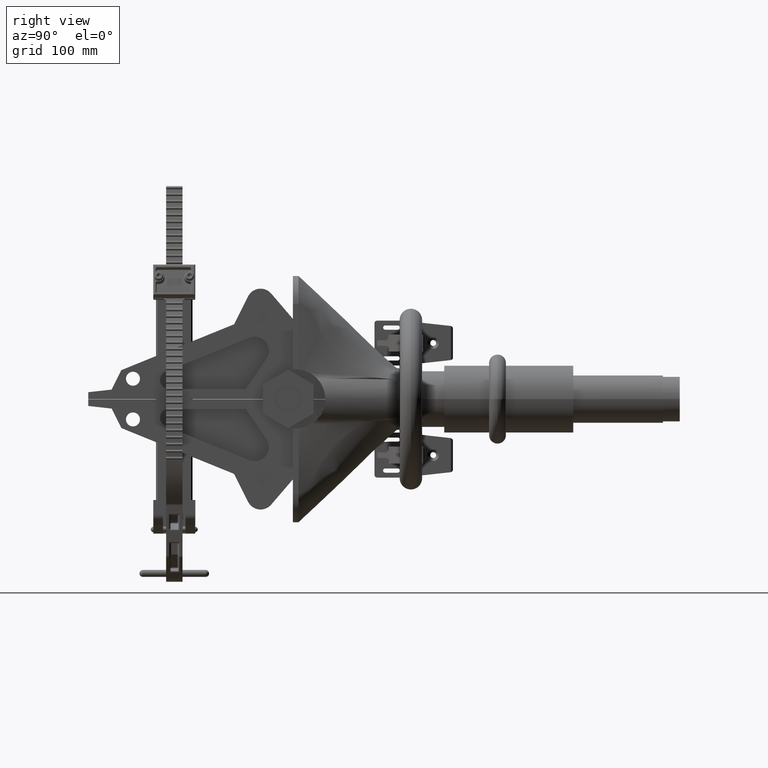
[diagram: clean part render]
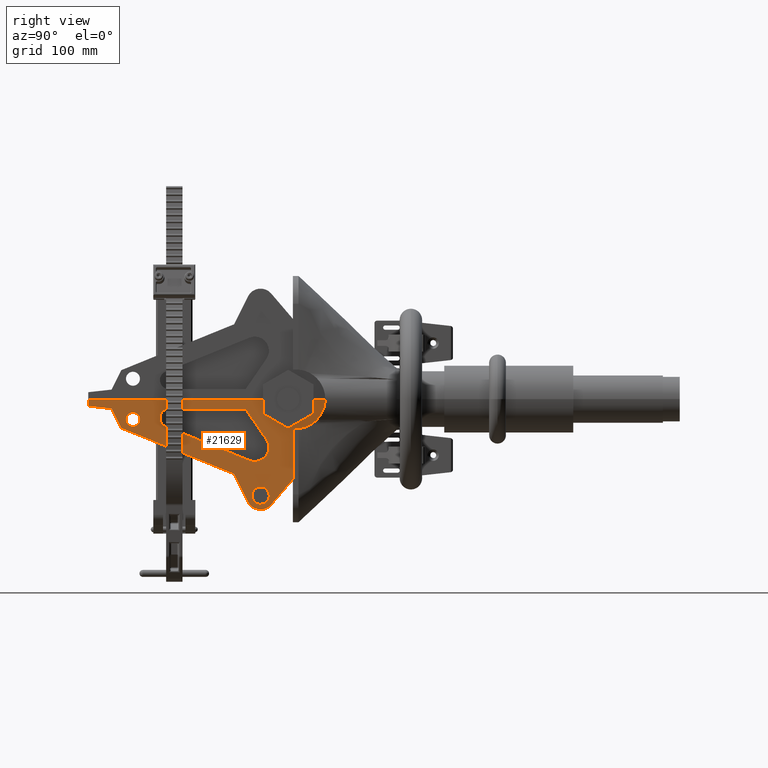
[diagram: same view with one face highlighted and labeled with its STEP entity id]
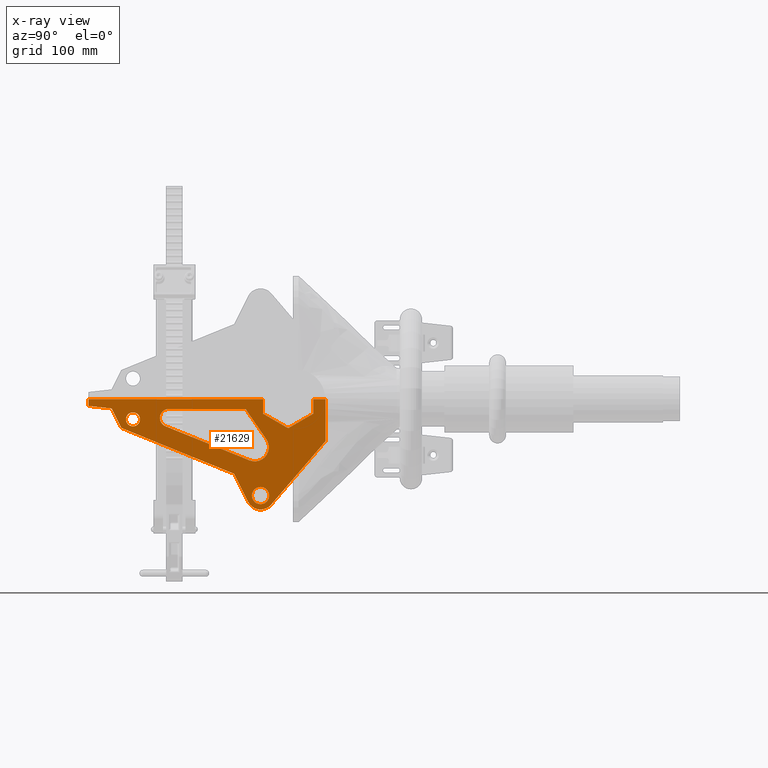
[diagram: x-ray of the same camera — body ghosted, the highlighted face saturated]
A machine part, right view. The second image highlights one B-rep face of the part: STEP entity #21629.
The next image is the same camera in x-ray: the body ghosted, the highlighted face saturated — about 0% of this face is hidden behind the body in this view.
In plain terms, the highlighted planar face has unit normal (1, -0, -0).
Its self-contained STEP definition (entity closure, byte-faithful):
#2314 = AXIS2_PLACEMENT_3D ( 'NONE', #36601, #36602, #36603 ) ;
#11015 = CARTESIAN_POINT ( 'NONE',  ( -4.689540982679162100, -18.69271457281462600, -0.8750000000000000000 ) ) ;
#11018 = CARTESIAN_POINT ( 'NONE',  ( -3.915934809785237600, -18.69271457281462600, -0.8750000000000000000 ) ) ;
#11023 = CARTESIAN_POINT ( 'NONE',  ( -0.6495190528383280000, -16.33558699352043300, -0.8750000000000000000 ) ) ;
#11028 = CARTESIAN_POINT ( 'NONE',  ( -0.005000000000002043600, -16.33558699352043300, -0.8750000000000000000 ) ) ;
#11047 = CARTESIAN_POINT ( 'NONE',  ( -1.299038105676657100, -17.46058699352043700, -0.8750000000000000000 ) ) ;
#11419 = CARTESIAN_POINT ( 'NONE',  ( -0.5947143604440423600, -24.38228473700458900, -0.8750000000000000000 ) ) ;
#11432 = CARTESIAN_POINT ( 'NONE',  ( -4.581987767989340400, -19.25131328805350600, -0.8750000000000000000 ) ) ;
#11444 = CARTESIAN_POINT ( 'NONE',  ( -1.219714360444043500, -24.38228473700458900, -0.8750000000000000000 ) ) ;
#11456 = CARTESIAN_POINT ( 'NONE',  ( -3.335338692878463200, -19.87452738585535200, -0.8750000000000000000 ) ) ;
#11462 = CARTESIAN_POINT ( 'NONE',  ( -0.005000000000002269100, -18.58558699352043700, -0.8750000000000000000 ) ) ;
#11463 = CARTESIAN_POINT ( 'NONE',  ( -0.005000000000003257000, -26.37500000000000000, -0.8750000000000000000 ) ) ;
#11469 = CARTESIAN_POINT ( 'NONE',  ( -0.4227285845236930500, -25.33553537445905200, -0.8750000000000000000 ) ) ;
#11484 = CARTESIAN_POINT ( 'NONE',  ( -1.881943335769423100, -15.79845020255319500, -0.8750000000000000000 ) ) ;
#11510 = CARTESIAN_POINT ( 'NONE',  ( -4.708851105566185200, -18.21828325349922300, -0.8750000000000000000 ) ) ;
#11640 = CARTESIAN_POINT ( 'NONE',  ( -1.290979029949884200, -24.90148706943447400, -0.8750000000000000000 ) ) ;
#12495 = FACE_BOUND ( 'NONE', #37054, .T. ) ;
#12497 = FACE_BOUND ( 'NONE', #28874, .T. ) ;
#12500 = FACE_BOUND ( 'NONE', #37159, .T. ) ;
#12502 = FACE_OUTER_BOUND ( 'NONE', #37234, .T. ) ;
#14080 = VERTEX_POINT ( 'NONE', #11015 ) ;
#14086 = VERTEX_POINT ( 'NONE', #11018 ) ;
#14096 = VERTEX_POINT ( 'NONE', #11023 ) ;
#14106 = VERTEX_POINT ( 'NONE', #11028 ) ;
#14148 = VERTEX_POINT ( 'NONE', #11047 ) ;
#16571 = VERTEX_POINT ( 'NONE', #11419 ) ;
#16584 = VERTEX_POINT ( 'NONE', #11432 ) ;
#16596 = VERTEX_POINT ( 'NONE', #11444 ) ;
#16608 = VERTEX_POINT ( 'NONE', #11456 ) ;
#16614 = VERTEX_POINT ( 'NONE', #11462 ) ;
#16615 = VERTEX_POINT ( 'NONE', #11463 ) ;
#16621 = VERTEX_POINT ( 'NONE', #11469 ) ;
#16636 = VERTEX_POINT ( 'NONE', #11484 ) ;
#16662 = VERTEX_POINT ( 'NONE', #11510 ) ;
#16792 = VERTEX_POINT ( 'NONE', #11640 ) ;
#16887 = ORIENTED_EDGE ( 'NONE', *, *, #27520, .F. ) ;
#16892 = ORIENTED_EDGE ( 'NONE', *, *, #27515, .T. ) ;
#16894 = ORIENTED_EDGE ( 'NONE', *, *, #27503, .T. ) ;
#16901 = ORIENTED_EDGE ( 'NONE', *, *, #27523, .F. ) ;
#16905 = ORIENTED_EDGE ( 'NONE', *, *, #27505, .T. ) ;
#16906 = ORIENTED_EDGE ( 'NONE', *, *, #27509, .T. ) ;
#16914 = ORIENTED_EDGE ( 'NONE', *, *, #27405, .T. ) ;
#16917 = ORIENTED_EDGE ( 'NONE', *, *, #27508, .T. ) ;
#16923 = ORIENTED_EDGE ( 'NONE', *, *, #27514, .T. ) ;
#16924 = ORIENTED_EDGE ( 'NONE', *, *, #27512, .T. ) ;
#16928 = ORIENTED_EDGE ( 'NONE', *, *, #27388, .F. ) ;
#16929 = ORIENTED_EDGE ( 'NONE', *, *, #27522, .F. ) ;
#16970 = ORIENTED_EDGE ( 'NONE', *, *, #27518, .F. ) ;
#16991 = ORIENTED_EDGE ( 'NONE', *, *, #27524, .F. ) ;
#17130 = ORIENTED_EDGE ( 'NONE', *, *, #27528, .T. ) ;
#17180 = ORIENTED_EDGE ( 'NONE', *, *, #27542, .T. ) ;
#17181 = ORIENTED_EDGE ( 'NONE', *, *, #27540, .T. ) ;
#17186 = ORIENTED_EDGE ( 'NONE', *, *, #27537, .T. ) ;
#17187 = ORIENTED_EDGE ( 'NONE', *, *, #27534, .T. ) ;
#17188 = ORIENTED_EDGE ( 'NONE', *, *, #27533, .T. ) ;
#17203 = ORIENTED_EDGE ( 'NONE', *, *, #27538, .T. ) ;
#17204 = ORIENTED_EDGE ( 'NONE', *, *, #27527, .T. ) ;
#17208 = ORIENTED_EDGE ( 'NONE', *, *, #27531, .T. ) ;
#19589 = CIRCLE ( 'NONE', #43030, 0.3868030864469623200 ) ;
#19619 = CIRCLE ( 'NONE', #43034, 0.3125000000000006100 ) ;
#19786 = LINE ( 'NONE', #30484, #19797 ) ;
#19790 = LINE ( 'NONE', #30488, #19800 ) ;
#19794 = VECTOR ( 'NONE', #30534, 39.37007874015749600 ) ;
#19797 = VECTOR ( 'NONE', #30492, 39.37007874015748100 ) ;
#19800 = VECTOR ( 'NONE', #30496, 39.37007874015748100 ) ;
#19802 = LINE ( 'NONE', #30499, #19805 ) ;
#19805 = VECTOR ( 'NONE', #30501, 39.37007874015748900 ) ;
#19807 = LINE ( 'NONE', #30521, #19814 ) ;
#19809 = LINE ( 'NONE', #30532, #19794 ) ;
#19811 = CIRCLE ( 'NONE', #43052, 0.6285695348644607700 ) ;
#19814 = VECTOR ( 'NONE', #30523, 39.37007874015748100 ) ;
#19816 = CIRCLE ( 'NONE', #43053, 0.3125000000000006100 ) ;
#19819 = CIRCLE ( 'NONE', #43054, 0.3994083246259699200 ) ;
#19821 = VECTOR ( 'NONE', #30586, 39.37007874015748900 ) ;
#19824 = LINE ( 'NONE', #30536, #19839 ) ;
#19826 = LINE ( 'NONE', #30520, #19830 ) ;
#19828 = CIRCLE ( 'NONE', #43050, 0.3868030864469623200 ) ;
#19830 = VECTOR ( 'NONE', #30539, 39.37007874015748100 ) ;
#19832 = LINE ( 'NONE', #30585, #19821 ) ;
#19835 = LINE ( 'NONE', #30542, #19837 ) ;
#19837 = VECTOR ( 'NONE', #30544, 39.37007874015748900 ) ;
#19839 = VECTOR ( 'NONE', #30549, 39.37007874015748100 ) ;
#19843 = LINE ( 'NONE', #30551, #19846 ) ;
#19846 = VECTOR ( 'NONE', #30553, 39.37007874015748100 ) ;
#19848 = LINE ( 'NONE', #30556, #19850 ) ;
#19850 = VECTOR ( 'NONE', #30558, 39.37007874015748100 ) ;
#19852 = LINE ( 'NONE', #30560, #19854 ) ;
#19854 = VECTOR ( 'NONE', #30562, 39.37007874015748100 ) ;
#19857 = LINE ( 'NONE', #30565, #19859 ) ;
#19859 = VECTOR ( 'NONE', #30567, 39.37007874015748900 ) ;
#19861 = LINE ( 'NONE', #30569, #19863 ) ;
#19863 = VECTOR ( 'NONE', #30571, 39.37007874015748900 ) ;
#19865 = LINE ( 'NONE', #30574, #19868 ) ;
#19868 = VECTOR ( 'NONE', #30576, 39.37007874015748900 ) ;
#19874 = CIRCLE ( 'NONE', #43055, 0.6245102205271770800 ) ;
#19877 = LINE ( 'NONE', #30589, #19879 ) ;
#19879 = VECTOR ( 'NONE', #30591, 39.37007874015748100 ) ;
#21629 = ADVANCED_FACE ( 'NONE', ( #12497, #12495, #12500, #12502 ), #36600, .T. ) ;
#27388 = EDGE_CURVE ( 'NONE', #14086, #14080, #19589, .T. ) ;
#27405 = EDGE_CURVE ( 'NONE', #16571, #16596, #19619, .T. ) ;
#27503 = EDGE_CURVE ( 'NONE', #42261, #42268, #19786, .T. ) ;
#27505 = EDGE_CURVE ( 'NONE', #42268, #42266, #19790, .T. ) ;
#27508 = EDGE_CURVE ( 'NONE', #42251, #42267, #19802, .T. ) ;
#27509 = EDGE_CURVE ( 'NONE', #42266, #42251, #19811, .T. ) ;
#27512 = EDGE_CURVE ( 'NONE', #16596, #16571, #19816, .T. ) ;
#27514 = EDGE_CURVE ( 'NONE', #42267, #42261, #19819, .T. ) ;
#27515 = EDGE_CURVE ( 'NONE', #42253, #14106, #19807, .T. ) ;
#27518 = EDGE_CURVE ( 'NONE', #14080, #14086, #19828, .T. ) ;
#27520 = EDGE_CURVE ( 'NONE', #37524, #14148, #19809, .T. ) ;
#27522 = EDGE_CURVE ( 'NONE', #14096, #14106, #19826, .T. ) ;
#27523 = EDGE_CURVE ( 'NONE', #14148, #14096, #19835, .T. ) ;
#27524 = EDGE_CURVE ( 'NONE', #16614, #37524, #19824, .T. ) ;
#27527 = EDGE_CURVE ( 'NONE', #16614, #16615, #19843, .T. ) ;
#27528 = EDGE_CURVE ( 'NONE', #16615, #42226, #19848, .T. ) ;
#27531 = EDGE_CURVE ( 'NONE', #42226, #16621, #19852, .T. ) ;
#27533 = EDGE_CURVE ( 'NONE', #16621, #16792, #19857, .T. ) ;
#27534 = EDGE_CURVE ( 'NONE', #16792, #16608, #19861, .T. ) ;
#27537 = EDGE_CURVE ( 'NONE', #16608, #16584, #19865, .T. ) ;
#27538 = EDGE_CURVE ( 'NONE', #16584, #16662, #19874, .T. ) ;
#27540 = EDGE_CURVE ( 'NONE', #16662, #16636, #19832, .T. ) ;
#27542 = EDGE_CURVE ( 'NONE', #16636, #42253, #19877, .T. ) ;
#27561 = CARTESIAN_POINT ( 'NONE',  ( -4.302737896232200000, -18.69271457281462600, -0.8750000000000000000 ) ) ;
#27564 = DIRECTION ( 'NONE',  ( 0.0000000000000000000, -0.0000000000000000000, -1.000000000000000000 ) ) ;
#27565 = DIRECTION ( 'NONE',  ( 1.000000000000000000, 0.0000000000000000000, 0.0000000000000000000 ) ) ;
#27602 = CARTESIAN_POINT ( 'NONE',  ( -0.9072143604440430200, -24.38228473700458900, -0.8750000000000000000 ) ) ;
#27605 = DIRECTION ( 'NONE',  ( -0.0000000000000000000, 0.0000000000000000000, 1.000000000000000000 ) ) ;
#27606 = DIRECTION ( 'NONE',  ( 1.000000000000000000, 0.0000000000000000000, 0.0000000000000000000 ) ) ;
#28874 = EDGE_LOOP ( 'NONE', ( #16924, #16914 ) ) ;
#30484 = CARTESIAN_POINT ( 'NONE',  ( -0.4431696564707641700, -22.78253434815870500, -0.8750000000000000000 ) ) ;
#30488 = CARTESIAN_POINT ( 'NONE',  ( -0.4431696564707637800, -19.35994013964527100, -0.8750000000000000000 ) ) ;
#30490 = CARTESIAN_POINT ( 'NONE',  ( -0.9072143604440430200, -24.38228473700458900, -0.8750000000000000000 ) ) ;
#30492 = DIRECTION ( 'NONE',  ( 1.197270766222740500E-016, 1.000000000000000000, 0.0000000000000000000 ) ) ;
#30494 = CARTESIAN_POINT ( 'NONE',  ( -2.149815049006750000, -18.95042680250688200, -0.8750000000000000000 ) ) ;
#30496 = DIRECTION ( 'NONE',  ( -0.8243316009238724800, 0.5661072440079577600, 0.0000000000000000000 ) ) ;
#30499 = CARTESIAN_POINT ( 'NONE',  ( -2.732283302730872600, -19.18671136307590400, -0.8750000000000000000 ) ) ;
#30501 = DIRECTION ( 'NONE',  ( 0.3759083879557926800, -0.9266568317691706900, 0.0000000000000000000 ) ) ;
#30503 = CARTESIAN_POINT ( 'NONE',  ( -0.8425779810967341000, -22.78253434815870500, -0.8750000000000000000 ) ) ;
#30505 = DIRECTION ( 'NONE',  ( -0.0000000000000000000, -0.0000000000000000000, 1.000000000000000000 ) ) ;
#30507 = DIRECTION ( 'NONE',  ( 1.000000000000000000, 0.0000000000000000000, 0.0000000000000000000 ) ) ;
#30511 = DIRECTION ( 'NONE',  ( -0.0000000000000000000, 0.0000000000000000000, 1.000000000000000000 ) ) ;
#30512 = DIRECTION ( 'NONE',  ( 1.000000000000000000, 0.0000000000000000000, 0.0000000000000000000 ) ) ;
#30516 = DIRECTION ( 'NONE',  ( -0.0000000000000000000, -0.0000000000000000000, 1.000000000000000000 ) ) ;
#30518 = DIRECTION ( 'NONE',  ( 1.000000000000000000, 0.0000000000000000000, 0.0000000000000000000 ) ) ;
#30520 = CARTESIAN_POINT ( 'NONE',  ( -0.6495190528383275600, -16.33558699352043300, -0.8750000000000000000 ) ) ;
#30521 = CARTESIAN_POINT ( 'NONE',  ( -0.005000000000001978600, -15.79845020255319500, -0.8750000000000000000 ) ) ;
#30523 = DIRECTION ( 'NONE',  ( -1.208730176918077100E-016, -1.000000000000000000, 0.0000000000000000000 ) ) ;
#30525 = CARTESIAN_POINT ( 'NONE',  ( -4.302737896232200000, -18.69271457281462600, -0.8750000000000000000 ) ) ;
#30528 = DIRECTION ( 'NONE',  ( 0.0000000000000000000, -0.0000000000000000000, -1.000000000000000000 ) ) ;
#30530 = DIRECTION ( 'NONE',  ( 1.000000000000000000, 0.0000000000000000000, 0.0000000000000000000 ) ) ;
#30532 = CARTESIAN_POINT ( 'NONE',  ( -0.6495190528383291100, -18.58558699352043700, -0.8750000000000000000 ) ) ;
#30534 = DIRECTION ( 'NONE',  ( -0.5000000000000002200, 0.8660254037844384900, 0.0000000000000000000 ) ) ;
#30536 = CARTESIAN_POINT ( 'NONE',  ( 0.6495190528383293400, -18.58558699352043700, -0.8750000000000000000 ) ) ;
#30539 = DIRECTION ( 'NONE',  ( 1.000000000000000000, 0.0000000000000000000, 0.0000000000000000000 ) ) ;
#30542 = CARTESIAN_POINT ( 'NONE',  ( -1.299038105676657600, -17.46058699352043700, -0.8750000000000000000 ) ) ;
#30544 = DIRECTION ( 'NONE',  ( 0.4999999999999996100, 0.8660254037844388200, 0.0000000000000000000 ) ) ;
#30546 = CARTESIAN_POINT ( 'NONE',  ( -4.302737896232200000, -18.69271457281462600, -0.8750000000000000000 ) ) ;
#30549 = DIRECTION ( 'NONE',  ( -1.000000000000000000, 0.0000000000000000000, 0.0000000000000000000 ) ) ;
#30551 = CARTESIAN_POINT ( 'NONE',  ( -0.005000000000001978600, -15.79845020255319500, -0.8750000000000000000 ) ) ;
#30553 = DIRECTION ( 'NONE',  ( -1.208730176918077100E-016, -1.000000000000000000, 0.0000000000000000000 ) ) ;
#30556 = CARTESIAN_POINT ( 'NONE',  ( -0.005000000000003257000, -26.37500000000000000, -0.8750000000000000000 ) ) ;
#30558 = DIRECTION ( 'NONE',  ( -1.000000000000000000, 0.0000000000000000000, 0.0000000000000000000 ) ) ;
#30560 = CARTESIAN_POINT ( 'NONE',  ( -0.3073444699243333400, -26.37500000000000000, -0.8750000000000000000 ) ) ;
#30562 = DIRECTION ( 'NONE',  ( -0.1103257839920547100, 0.9938954780994521100, 0.0000000000000000000 ) ) ;
#30565 = CARTESIAN_POINT ( 'NONE',  ( -1.290979029949884200, -24.90148706943447400, -0.8750000000000000000 ) ) ;
#30567 = DIRECTION ( 'NONE',  ( -0.8944588845436983700, 0.4471502027963788500, 0.0000000000000000000 ) ) ;
#30569 = CARTESIAN_POINT ( 'NONE',  ( -3.335338692878463200, -19.87452738585535200, -0.8750000000000000000 ) ) ;
#30571 = DIRECTION ( 'NONE',  ( -0.3767182360885910600, 0.9263278958329498300, 0.0000000000000000000 ) ) ;
#30574 = CARTESIAN_POINT ( 'NONE',  ( -4.581987767989339500, -19.25131328805350600, -0.8750000000000000000 ) ) ;
#30576 = DIRECTION ( 'NONE',  ( -0.8944588845436984800, 0.4471502027963784600, 0.0000000000000000000 ) ) ;
#30580 = DIRECTION ( 'NONE',  ( -0.0000000000000000000, -0.0000000000000000000, -1.000000000000000000 ) ) ;
#30582 = DIRECTION ( 'NONE',  ( 1.000000000000000000, 0.0000000000000000000, 0.0000000000000000000 ) ) ;
#30585 = CARTESIAN_POINT ( 'NONE',  ( -1.881943335769423100, -15.79845020255319500, -0.8750000000000000000 ) ) ;
#30586 = DIRECTION ( 'NONE',  ( 0.7596854362365989000, 0.6502907334185290500, 0.0000000000000000000 ) ) ;
#30589 = CARTESIAN_POINT ( 'NONE',  ( -0.005000000000001978600, -15.79845020255319500, -0.8750000000000000000 ) ) ;
#30591 = DIRECTION ( 'NONE',  ( 1.000000000000000000, -0.0000000000000000000, -0.0000000000000000000 ) ) ;
#34714 = CARTESIAN_POINT ( 'NONE',  ( -0.6495190528383291100, -18.58558699352043700, -0.8750000000000000000 ) ) ;
#34741 = CARTESIAN_POINT ( 'NONE',  ( -0.3073444699243333400, -26.37500000000000000, -0.8750000000000000000 ) ) ;
#34766 = CARTESIAN_POINT ( 'NONE',  ( -2.732283302730872600, -19.18671136307590400, -0.8750000000000000000 ) ) ;
#34768 = CARTESIAN_POINT ( 'NONE',  ( -0.005000000000001978600, -15.79845020255319500, -0.8750000000000000000 ) ) ;
#34776 = CARTESIAN_POINT ( 'NONE',  ( -0.4431696564707641200, -22.78253434815870500, -0.8750000000000000000 ) ) ;
#34781 = CARTESIAN_POINT ( 'NONE',  ( -1.793977281957267000, -18.43227707154008500, -0.8750000000000000000 ) ) ;
#34782 = CARTESIAN_POINT ( 'NONE',  ( -1.212692433776867900, -22.93267528760498000, -0.8750000000000000000 ) ) ;
#34783 = CARTESIAN_POINT ( 'NONE',  ( -0.4431696564707637800, -19.35994013964527100, -0.8750000000000000000 ) ) ;
#36600 = PLANE ( 'NONE',  #2314 ) ;
#36601 = CARTESIAN_POINT ( 'NONE',  ( -4.302737896232200000, -18.69271457281462600, -0.8750000000000000000 ) ) ;
#36602 = DIRECTION ( 'NONE',  ( 0.0000000000000000000, 0.0000000000000000000, -1.000000000000000000 ) ) ;
#36603 = DIRECTION ( 'NONE',  ( 1.000000000000000000, 0.0000000000000000000, 0.0000000000000000000 ) ) ;
#37054 = EDGE_LOOP ( 'NONE', ( #16923, #16894, #16905, #16906, #16917 ) ) ;
#37159 = EDGE_LOOP ( 'NONE', ( #16928, #16970 ) ) ;
#37234 = EDGE_LOOP ( 'NONE', ( #16892, #16929, #16901, #16887, #16991, #17204, #17130, #17208, #17188, #17187, #17186, #17203, #17181, #17180 ) ) ;
#37524 = VERTEX_POINT ( 'NONE', #34714 ) ;
#42226 = VERTEX_POINT ( 'NONE', #34741 ) ;
#42251 = VERTEX_POINT ( 'NONE', #34766 ) ;
#42253 = VERTEX_POINT ( 'NONE', #34768 ) ;
#42261 = VERTEX_POINT ( 'NONE', #34776 ) ;
#42266 = VERTEX_POINT ( 'NONE', #34781 ) ;
#42267 = VERTEX_POINT ( 'NONE', #34782 ) ;
#42268 = VERTEX_POINT ( 'NONE', #34783 ) ;
#43030 = AXIS2_PLACEMENT_3D ( 'NONE', #27561, #27564, #27565 ) ;
#43034 = AXIS2_PLACEMENT_3D ( 'NONE', #27602, #27605, #27606 ) ;
#43050 = AXIS2_PLACEMENT_3D ( 'NONE', #30525, #30528, #30530 ) ;
#43052 = AXIS2_PLACEMENT_3D ( 'NONE', #30494, #30505, #30507 ) ;
#43053 = AXIS2_PLACEMENT_3D ( 'NONE', #30490, #30511, #30512 ) ;
#43054 = AXIS2_PLACEMENT_3D ( 'NONE', #30503, #30516, #30518 ) ;
#43055 = AXIS2_PLACEMENT_3D ( 'NONE', #30546, #30580, #30582 ) ;